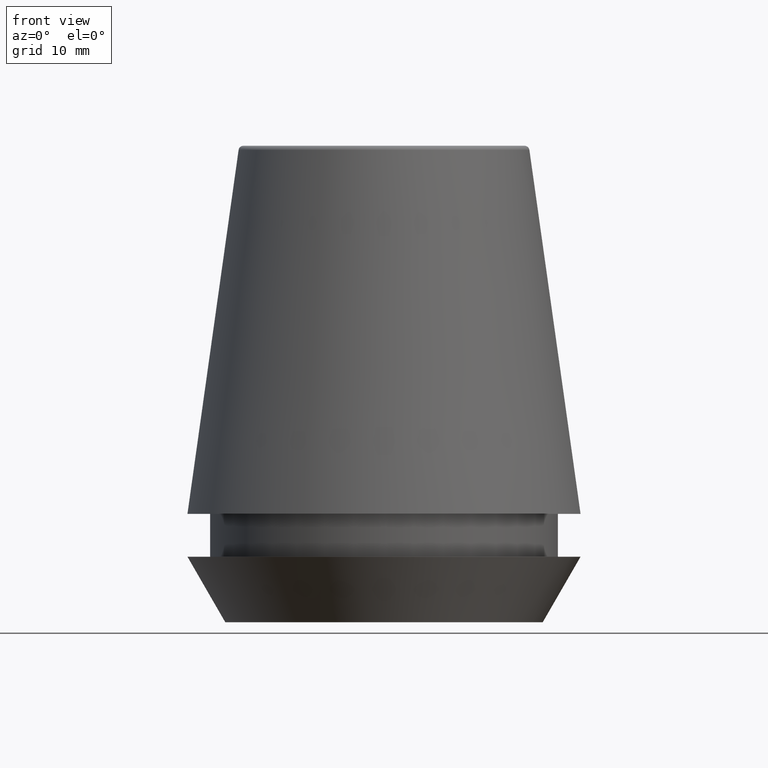
[diagram: clean part render]
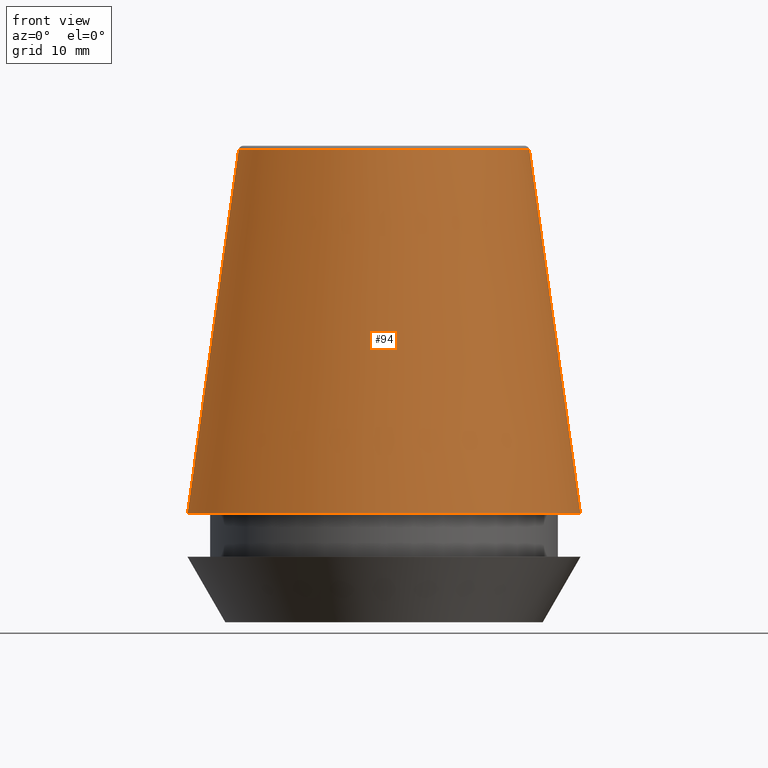
[diagram: same view with one face highlighted and labeled with its STEP entity id]
A machine part, front view. The second image highlights one B-rep face of the part: STEP entity #94.
In plain terms, the highlighted conical surface has half-angle 8 deg.
Its self-contained STEP definition (entity closure, byte-faithful):
#5 = DIRECTION ( 'NONE',  ( -1.000000000000000000, 0.0000000000000000000, 0.0000000000000000000 ) ) ;
#10 = CARTESIAN_POINT ( 'NONE',  ( 12.20600611160694300, 1.757755848304969800E-015, 39.65566924038402900 ) ) ;
#11 = LINE ( 'NONE', #161, #309 ) ;
#13 = ORIENTED_EDGE ( 'NONE', *, *, #229, .F. ) ;
#18 = AXIS2_PLACEMENT_3D ( 'NONE', #313, #69, #252 ) ;
#38 = DIRECTION ( 'NONE',  ( -0.0000000000000000000, -0.0000000000000000000, 1.000000000000000000 ) ) ;
#58 = DIRECTION ( 'NONE',  ( 0.0000000000000000000, 0.0000000000000000000, -1.000000000000000000 ) ) ;
#60 = CARTESIAN_POINT ( 'NONE',  ( 0.0000000000000000000, 0.0000000000000000000, 9.099999999999997900 ) ) ;
#67 = VECTOR ( 'NONE', #378, 1000.000000000000000 ) ;
#68 = CARTESIAN_POINT ( 'NONE',  ( -12.20600611160694300, 0.0000000000000000000, 39.65566924038402900 ) ) ;
#69 = DIRECTION ( 'NONE',  ( -0.0000000000000000000, -0.0000000000000000000, 1.000000000000000000 ) ) ;
#87 = AXIS2_PLACEMENT_3D ( 'NONE', #314, #38, #195 ) ;
#94 = ADVANCED_FACE ( 'NONE', ( #321 ), #173, .T. ) ;
#100 = DIRECTION ( 'NONE',  ( -0.1391731009600586900, 0.0000000000000000000, -0.9902680687415712500 ) ) ;
#102 = ORIENTED_EDGE ( 'NONE', *, *, #248, .T. ) ;
#146 = CIRCLE ( 'NONE', #18, 12.20600611160694300 ) ;
#150 = LINE ( 'NONE', #282, #67 ) ;
#161 = CARTESIAN_POINT ( 'NONE',  ( -16.50032537154048700, 0.0000000000000000000, 9.099999999999997900 ) ) ;
#173 = CONICAL_SURFACE ( 'NONE', #193, 16.50032537154048700, 0.1396263401595395900 ) ;
#175 = ORIENTED_EDGE ( 'NONE', *, *, #200, .T. ) ;
#193 = AXIS2_PLACEMENT_3D ( 'NONE', #60, #58, #5 ) ;
#194 = VERTEX_POINT ( 'NONE', #10 ) ;
#195 = DIRECTION ( 'NONE',  ( 1.000000000000000000, 0.0000000000000000000, 0.0000000000000000000 ) ) ;
#200 = EDGE_CURVE ( 'NONE', #213, #261, #11, .T. ) ;
#202 = EDGE_CURVE ( 'NONE', #194, #358, #150, .T. ) ;
#213 = VERTEX_POINT ( 'NONE', #68 ) ;
#229 = EDGE_CURVE ( 'NONE', #213, #194, #146, .T. ) ;
#248 = EDGE_CURVE ( 'NONE', #261, #358, #386, .T. ) ;
#252 = DIRECTION ( 'NONE',  ( 1.000000000000000000, 0.0000000000000000000, 0.0000000000000000000 ) ) ;
#261 = VERTEX_POINT ( 'NONE', #284 ) ;
#282 = CARTESIAN_POINT ( 'NONE',  ( 16.50032537154048700, 2.020707065114692300E-015, 9.099999999999997900 ) ) ;
#284 = CARTESIAN_POINT ( 'NONE',  ( -16.50032537154048700, 0.0000000000000000000, 9.099999999999997900 ) ) ;
#309 = VECTOR ( 'NONE', #100, 1000.000000000000000 ) ;
#313 = CARTESIAN_POINT ( 'NONE',  ( 0.0000000000000000000, 0.0000000000000000000, 39.65566924038402900 ) ) ;
#314 = CARTESIAN_POINT ( 'NONE',  ( 0.0000000000000000000, 0.0000000000000000000, 9.099999999999997900 ) ) ;
#321 = FACE_OUTER_BOUND ( 'NONE', #325, .T. ) ;
#325 = EDGE_LOOP ( 'NONE', ( #372, #13, #175, #102 ) ) ;
#352 = CARTESIAN_POINT ( 'NONE',  ( 16.50032537154048700, 2.020707065114692300E-015, 9.099999999999997900 ) ) ;
#358 = VERTEX_POINT ( 'NONE', #352 ) ;
#372 = ORIENTED_EDGE ( 'NONE', *, *, #202, .F. ) ;
#378 = DIRECTION ( 'NONE',  ( 0.1391731009600586900, 1.704378926181473100E-017, -0.9902680687415712500 ) ) ;
#386 = CIRCLE ( 'NONE', #87, 16.50032537154048700 ) ;